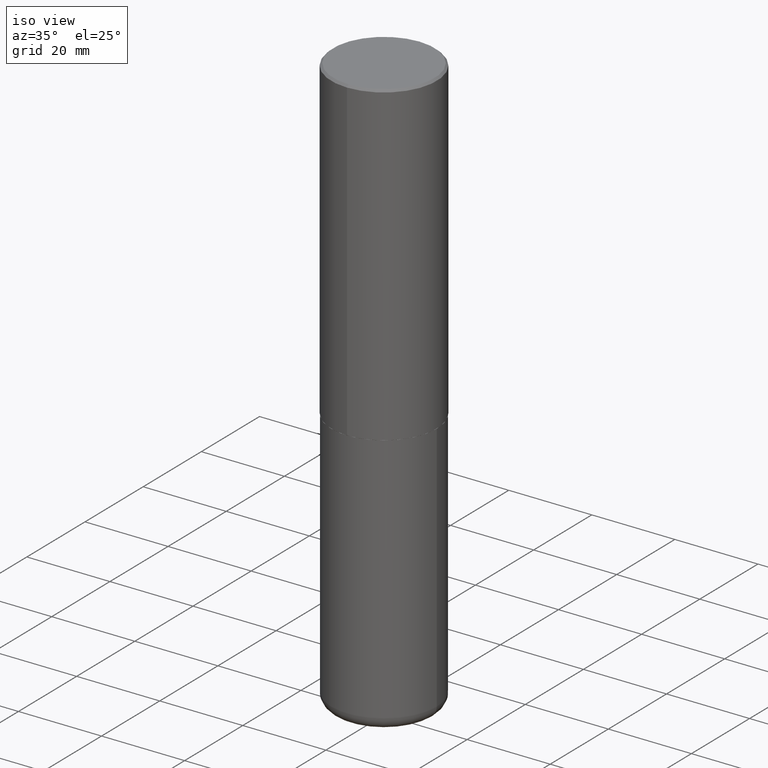
[diagram: clean part render]
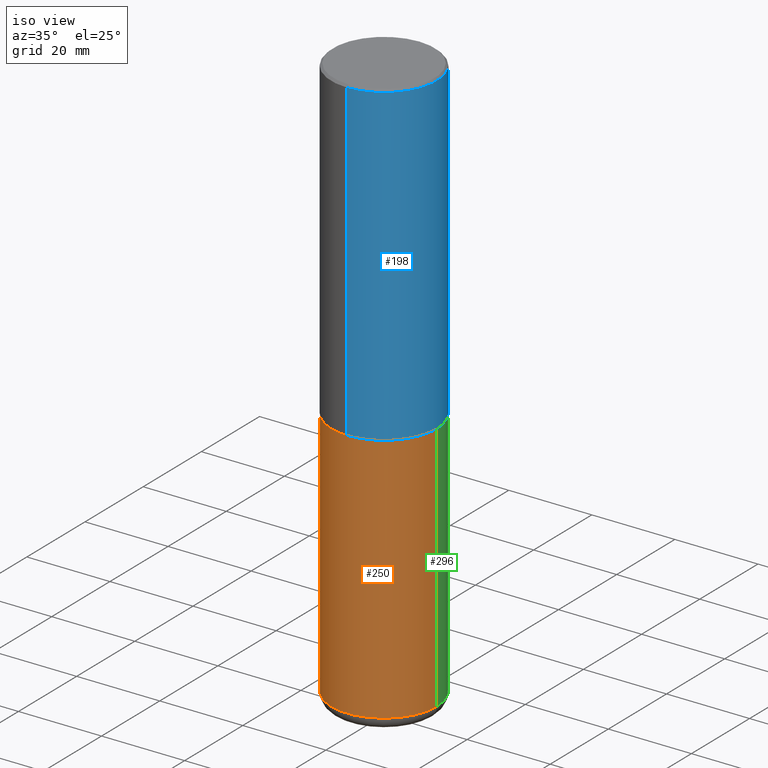
[diagram: same view with three faces highlighted in distinct colors, each labeled with its STEP entity id]
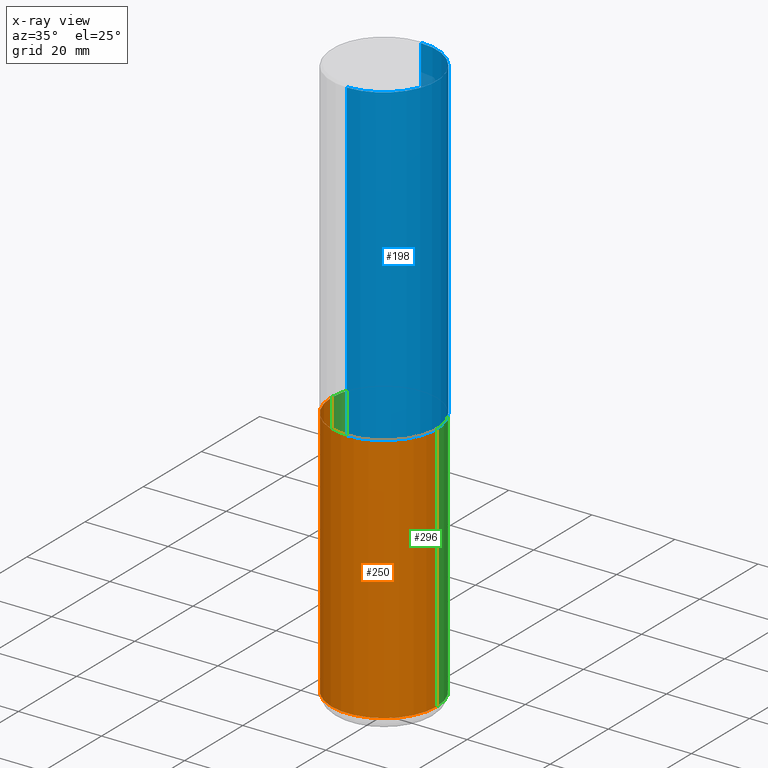
[diagram: x-ray of the same camera — body ghosted, the three highlighted faces saturated]
A machine part, iso view with three faces highlighted in distinct colors.
The next image is the same camera in x-ray (body ghosted, the three faces saturated) — at least one of them is partly hidden behind the body in this view.
Their STEP definitions:

[orange] entity #250 — the highlighted cylindrical surface (partial cylindrical patch) has radius 12.7 mm, axis along (-0, 0, 1).
#1 = CIRCLE ( 'NONE', #392, 0.5000000000000001110 ) ;
#14 = DIRECTION ( 'NONE',  ( -2.445468806185136877E-29, 3.491481338843145188E-15, 1.000000000000000000 ) ) ;
#17 = VERTEX_POINT ( 'NONE', #34 ) ;
#21 = VECTOR ( 'NONE', #352, 39.37007874015748143 ) ;
#27 = DIRECTION ( 'NONE',  ( 1.000000000000000000, -6.982962677686266711E-15, 0.000000000000000000 ) ) ;
#29 = EDGE_CURVE ( 'NONE', #329, #17, #101, .T. ) ;
#34 = CARTESIAN_POINT ( 'NONE',  ( -0.5000000000000000000, -1.107659313095227958E-14, -2.999999999999999556 ) ) ;
#49 = ORIENTED_EDGE ( 'NONE', *, *, #351, .T. ) ;
#91 = VERTEX_POINT ( 'NONE', #194 ) ;
#101 = LINE ( 'NONE', #293, #21 ) ;
#109 = CARTESIAN_POINT ( 'NONE',  ( 0.5000000000000000000, -2.227565094181925644E-14, -5.379999999999999893 ) ) ;
#111 = FACE_OUTER_BOUND ( 'NONE', #174, .T. ) ;
#147 = CARTESIAN_POINT ( 'NONE',  ( 0.5000000000000000000, -3.491481338843133355E-15, 2.438088387897967896E-29 ) ) ;
#150 = DIRECTION ( 'NONE',  ( -2.445468806185136597E-29, 3.491481338843145583E-15, 1.000000000000000000 ) ) ;
#174 = EDGE_LOOP ( 'NONE', ( #315, #49, #245, #223 ) ) ;
#194 = CARTESIAN_POINT ( 'NONE',  ( 0.5000000000000000000, -1.396592535537256813E-14, -2.999999999999999556 ) ) ;
#220 = AXIS2_PLACEMENT_3D ( 'NONE', #246, #150, #248 ) ;
#223 = ORIENTED_EDGE ( 'NONE', *, *, #405, .F. ) ;
#245 = ORIENTED_EDGE ( 'NONE', *, *, #275, .T. ) ;
#246 = CARTESIAN_POINT ( 'NONE',  ( 0.000000000000000000, 0.000000000000000000, 0.000000000000000000 ) ) ;
#248 = DIRECTION ( 'NONE',  ( 1.000000000000000000, -6.982962677686266711E-15, 4.876176775795935793E-29 ) ) ;
#250 = ADVANCED_FACE ( 'NONE', ( #111 ), #252, .T. ) ;
#251 = VERTEX_POINT ( 'NONE', #109 ) ;
#252 = CYLINDRICAL_SURFACE ( 'NONE', #220, 0.5000000000000000000 ) ;
#275 = EDGE_CURVE ( 'NONE', #251, #91, #277, .T. ) ;
#277 = LINE ( 'NONE', #147, #412 ) ;
#293 = CARTESIAN_POINT ( 'NONE',  ( -0.5000000000000000000, 3.552713678800500929E-15, -2.459467545127452891E-29 ) ) ;
#315 = ORIENTED_EDGE ( 'NONE', *, *, #29, .F. ) ;
#322 = DIRECTION ( 'NONE',  ( -2.445468806185136597E-29, 3.491481338843145583E-15, 1.000000000000000000 ) ) ;
#326 = AXIS2_PLACEMENT_3D ( 'NONE', #370, #322, #27 ) ;
#329 = VERTEX_POINT ( 'NONE', #336 ) ;
#331 = CARTESIAN_POINT ( 'NONE',  ( 1.315662217727603498E-28, -1.878416960297612308E-14, -5.379999999999999893 ) ) ;
#333 = DIRECTION ( 'NONE',  ( 1.000000000000000000, -6.982962677686269077E-15, 0.000000000000000000 ) ) ;
#336 = CARTESIAN_POINT ( 'NONE',  ( -0.5000000000000000000, -1.523145592417562216E-14, -5.379999999999999893 ) ) ;
#351 = EDGE_CURVE ( 'NONE', #329, #251, #1, .T. ) ;
#352 = DIRECTION ( 'NONE',  ( -2.445468806185136877E-29, 3.491481338843145188E-15, 1.000000000000000000 ) ) ;
#370 = CARTESIAN_POINT ( 'NONE',  ( 7.336406418555408669E-29, -1.047444401652943478E-14, -2.999999999999999556 ) ) ;
#378 = CIRCLE ( 'NONE', #326, 0.5000000000000000000 ) ;
#392 = AXIS2_PLACEMENT_3D ( 'NONE', #331, #394, #333 ) ;
#394 = DIRECTION ( 'NONE',  ( -2.445468806185136597E-29, 3.491481338843145583E-15, 1.000000000000000000 ) ) ;
#405 = EDGE_CURVE ( 'NONE', #17, #91, #378, .T. ) ;
#412 = VECTOR ( 'NONE', #14, 39.37007874015748143 ) ;

[blue] entity #198 — the highlighted cylindrical surface (partial cylindrical patch) has radius 12.7 mm, axis along (-0, 0, 1).
#12 = EDGE_CURVE ( 'NONE', #390, #152, #371, .T. ) ;
#15 = DIRECTION ( 'NONE',  ( -6.982962677686265922E-15, -1.000000000000000000, 3.490694428695902798E-15 ) ) ;
#44 = DIRECTION ( 'NONE',  ( -6.982962677686265922E-15, -1.000000000000000000, 3.278217592397113496E-15 ) ) ;
#46 = ORIENTED_EDGE ( 'NONE', *, *, #178, .T. ) ;
#48 = DIRECTION ( 'NONE',  ( -6.982962677686265922E-15, -1.000000000000000000, 3.491643216902136408E-15 ) ) ;
#51 = DIRECTION ( 'NONE',  ( -2.446018302604025378E-29, 3.490694428695902798E-15, 1.000000000000000000 ) ) ;
#56 = VERTEX_POINT ( 'NONE', #103 ) ;
#69 = ORIENTED_EDGE ( 'NONE', *, *, #12, .F. ) ;
#82 = AXIS2_PLACEMENT_3D ( 'NONE', #402, #339, #15 ) ;
#85 = CARTESIAN_POINT ( 'NONE',  ( -3.491481338843061963E-15, -0.5000000000000107692, -2.998999999999998778 ) ) ;
#103 = CARTESIAN_POINT ( 'NONE',  ( 3.491481338843133355E-15, 0.4999999999999999445, -0.02000000000000185310 ) ) ;
#128 = DIRECTION ( 'NONE',  ( -2.446018302604025097E-29, 3.490694428695902798E-15, 1.000000000000000000 ) ) ;
#142 = CARTESIAN_POINT ( 'NONE',  ( 3.552713678800501718E-15, 0.5000000000000001110, -1.745347214347951794E-15 ) ) ;
#152 = VERTEX_POINT ( 'NONE', #323 ) ;
#168 = CIRCLE ( 'NONE', #285, 0.5000000000000000000 ) ;
#178 = EDGE_CURVE ( 'NONE', #301, #56, #399, .T. ) ;
#181 = CARTESIAN_POINT ( 'NONE',  ( 3.552713678800539584E-15, 0.4999999999999898970, -2.999000000000001886 ) ) ;
#192 = CARTESIAN_POINT ( 'NONE',  ( -3.491481338843133750E-15, -0.5000000000000001110, 1.745347214347951794E-15 ) ) ;
#198 = ADVANCED_FACE ( 'NONE', ( #364 ), #303, .T. ) ;
#204 = DIRECTION ( 'NONE',  ( -2.446018302604025378E-29, 3.490694428695902798E-15, 1.000000000000000000 ) ) ;
#239 = AXIS2_PLACEMENT_3D ( 'NONE', #279, #51, #44 ) ;
#273 = CARTESIAN_POINT ( 'NONE',  ( 4.892036605208077240E-31, -6.981388857391842821E-17, -0.02000000000000010797 ) ) ;
#274 = EDGE_LOOP ( 'NONE', ( #332, #46, #366, #69 ) ) ;
#278 = EDGE_CURVE ( 'NONE', #390, #301, #330, .T. ) ;
#279 = CARTESIAN_POINT ( 'NONE',  ( 7.335608889509473609E-29, -1.046859259165901344E-14, -2.999000000000000554 ) ) ;
#285 = AXIS2_PLACEMENT_3D ( 'NONE', #273, #204, #48 ) ;
#295 = DIRECTION ( 'NONE',  ( -2.446018302604025097E-29, 3.490694428695902798E-15, 1.000000000000000000 ) ) ;
#301 = VERTEX_POINT ( 'NONE', #181 ) ;
#303 = CYLINDRICAL_SURFACE ( 'NONE', #82, 0.5000000000000001110 ) ;
#323 = CARTESIAN_POINT ( 'NONE',  ( -3.430248998885764992E-15, -0.5000000000000001110, -0.01999999999999835937 ) ) ;
#330 = CIRCLE ( 'NONE', #239, 0.5000000000000003331 ) ;
#332 = ORIENTED_EDGE ( 'NONE', *, *, #278, .T. ) ;
#339 = DIRECTION ( 'NONE',  ( -2.446018302604025378E-29, 3.490694428695902798E-15, 1.000000000000000000 ) ) ;
#364 = FACE_OUTER_BOUND ( 'NONE', #274, .T. ) ;
#366 = ORIENTED_EDGE ( 'NONE', *, *, #373, .F. ) ;
#371 = LINE ( 'NONE', #192, #403 ) ;
#373 = EDGE_CURVE ( 'NONE', #152, #56, #168, .T. ) ;
#384 = VECTOR ( 'NONE', #128, 39.37007874015748143 ) ;
#390 = VERTEX_POINT ( 'NONE', #85 ) ;
#399 = LINE ( 'NONE', #142, #384 ) ;
#402 = CARTESIAN_POINT ( 'NONE',  ( 0.000000000000000000, 0.000000000000000000, 0.000000000000000000 ) ) ;
#403 = VECTOR ( 'NONE', #295, 39.37007874015748143 ) ;

[green] entity #296 — the highlighted cylindrical surface (partial cylindrical patch) has radius 12.7 mm, axis along (-0, 0, 1).
#14 = DIRECTION ( 'NONE',  ( -2.445468806185136877E-29, 3.491481338843145188E-15, 1.000000000000000000 ) ) ;
#16 = EDGE_CURVE ( 'NONE', #251, #329, #262, .T. ) ;
#17 = VERTEX_POINT ( 'NONE', #34 ) ;
#21 = VECTOR ( 'NONE', #352, 39.37007874015748143 ) ;
#29 = EDGE_CURVE ( 'NONE', #329, #17, #101, .T. ) ;
#34 = CARTESIAN_POINT ( 'NONE',  ( -0.5000000000000000000, -1.107659313095227958E-14, -2.999999999999999556 ) ) ;
#36 = AXIS2_PLACEMENT_3D ( 'NONE', #113, #77, #208 ) ;
#41 = EDGE_LOOP ( 'NONE', ( #311, #186, #410, #287 ) ) ;
#67 = DIRECTION ( 'NONE',  ( 1.000000000000000000, -6.982962677686269077E-15, 0.000000000000000000 ) ) ;
#73 = AXIS2_PLACEMENT_3D ( 'NONE', #200, #234, #67 ) ;
#77 = DIRECTION ( 'NONE',  ( -2.445468806185136597E-29, 3.491481338843145583E-15, 1.000000000000000000 ) ) ;
#90 = CIRCLE ( 'NONE', #290, 0.5000000000000000000 ) ;
#91 = VERTEX_POINT ( 'NONE', #194 ) ;
#101 = LINE ( 'NONE', #293, #21 ) ;
#109 = CARTESIAN_POINT ( 'NONE',  ( 0.5000000000000000000, -2.227565094181925644E-14, -5.379999999999999893 ) ) ;
#113 = CARTESIAN_POINT ( 'NONE',  ( 0.000000000000000000, 0.000000000000000000, 0.000000000000000000 ) ) ;
#147 = CARTESIAN_POINT ( 'NONE',  ( 0.5000000000000000000, -3.491481338843133355E-15, 2.438088387897967896E-29 ) ) ;
#186 = ORIENTED_EDGE ( 'NONE', *, *, #29, .T. ) ;
#188 = DIRECTION ( 'NONE',  ( -2.445468806185136597E-29, 3.491481338843145583E-15, 1.000000000000000000 ) ) ;
#194 = CARTESIAN_POINT ( 'NONE',  ( 0.5000000000000000000, -1.396592535537256813E-14, -2.999999999999999556 ) ) ;
#200 = CARTESIAN_POINT ( 'NONE',  ( 1.315662217727603498E-28, -1.878416960297612308E-14, -5.379999999999999893 ) ) ;
#208 = DIRECTION ( 'NONE',  ( 1.000000000000000000, -6.982962677686266711E-15, 4.876176775795935793E-29 ) ) ;
#209 = FACE_OUTER_BOUND ( 'NONE', #41, .T. ) ;
#234 = DIRECTION ( 'NONE',  ( -2.445468806185136597E-29, 3.491481338843145583E-15, 1.000000000000000000 ) ) ;
#251 = VERTEX_POINT ( 'NONE', #109 ) ;
#262 = CIRCLE ( 'NONE', #73, 0.5000000000000001110 ) ;
#275 = EDGE_CURVE ( 'NONE', #251, #91, #277, .T. ) ;
#277 = LINE ( 'NONE', #147, #412 ) ;
#287 = ORIENTED_EDGE ( 'NONE', *, *, #275, .F. ) ;
#288 = CARTESIAN_POINT ( 'NONE',  ( 7.336406418555408669E-29, -1.047444401652943478E-14, -2.999999999999999556 ) ) ;
#290 = AXIS2_PLACEMENT_3D ( 'NONE', #288, #188, #319 ) ;
#293 = CARTESIAN_POINT ( 'NONE',  ( -0.5000000000000000000, 3.552713678800500929E-15, -2.459467545127452891E-29 ) ) ;
#296 = ADVANCED_FACE ( 'NONE', ( #209 ), #300, .T. ) ;
#300 = CYLINDRICAL_SURFACE ( 'NONE', #36, 0.5000000000000000000 ) ;
#311 = ORIENTED_EDGE ( 'NONE', *, *, #16, .T. ) ;
#319 = DIRECTION ( 'NONE',  ( 1.000000000000000000, -6.982962677686266711E-15, 0.000000000000000000 ) ) ;
#329 = VERTEX_POINT ( 'NONE', #336 ) ;
#336 = CARTESIAN_POINT ( 'NONE',  ( -0.5000000000000000000, -1.523145592417562216E-14, -5.379999999999999893 ) ) ;
#352 = DIRECTION ( 'NONE',  ( -2.445468806185136877E-29, 3.491481338843145188E-15, 1.000000000000000000 ) ) ;
#386 = EDGE_CURVE ( 'NONE', #91, #17, #90, .T. ) ;
#410 = ORIENTED_EDGE ( 'NONE', *, *, #386, .F. ) ;
#412 = VECTOR ( 'NONE', #14, 39.37007874015748143 ) ;